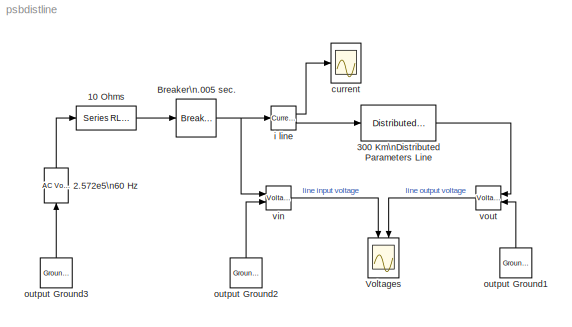
MODEL psbdistline
KIND model
BLOCK [Reference] 10 Ohms  REF=powerlib2/Elements/Series RLC Branch
  PSBOutputType = 1
  Ports = [1, 1]
  SourceBlock = powerlib2/Elements/Series RLC Branch
  SourceType = Series RLC Branch
  Tag = PoWeRsYsTeMbLoCk
  a = 10
  b = 0
  c = inf
  mesure = None
BLOCK [Reference] 2.572e5\n60 Hz   REF=powerlib2/Electrical\nSources/AC Voltage Source
  A = (315e3*sqrt(2))/sqrt(30)
  F = 60
  P = 0
  PSBOutputType = 1
  Ports = [1, 1]
  SourceBlock = powerlib2/Electrical\nSources/AC Voltage Source
  SourceType = AC Voltage Source
  Tag = PoWeRsYsTeMbLoCk
  mesure = None
  stime = 0
BLOCK [Reference] 300 Km\nDistributed Parameters Line  REF=powerlib2/Elements/Distributed Parameters Line
  PSBOutputType = 111111111111111111111111111111
  Ports = [1, 1]
  SourceBlock = powerlib2/Elements/Distributed Parameters Line
  SourceType = Distributed Parameters Line
  Tag = PoWeRsYsTeMbLoCk
  c = 8.6e-9
  f = 60
  l = 2.0e-3
  lgt = 300
  mesure = None
  n = 1
  r = 0.2568
  x1 = [0 -1.992e-09;0.0002737 -2.609e-09;0.0005474 -3.197e-09;0.0008212 -3.752e-09;0.001095 -4.267e-09;0.001369 -4.736e-09]
  x2 = [0 -1.992e-09;0.0002737 -2.609e-09;0.0005474 -3.197e-09;0.0008212 -3.752e-09;0.001095 -4.267e-09;0.001369 -4.736e-09]
  x3 = [0 -8.754e-13;0.0002737 -2.116e-12;0.0005474 -3.334e-12;0.0008212 -4.517e-12;0.001095 -5.651e-12;0.001369 -6.726e-12]
  x4 = [0 -8.754e-13;0.0002737 -2.116e-12;0.0005474 -3.334e-12;0.0008212 -4.517e-12;0.001095 -5.651e-12;0.001369 -6.726e-12]
  x5 = 0.001369
BLOCK [Reference] Breaker\n.005 sec.  REF=powerlib2/Elements/Breaker
  PSBOutputType = 1
  Ports = [1, 1]
  SourceBlock = powerlib2/Elements/Breaker
  SourceType = Breaker
  Tag = PoWeRsYsTeMbLoCk
  Ts = 0
  a = 1e-1
  c = 0
  comext = off
  cs = 0
  mesure = None
  rs = inf
  times = [ .005 ]
BLOCK [Scope] Voltages
  DataFormat = Array
  MaxDataPoints = 5000000
  NumInputPorts = 2
  Ports = [2]
  TickLabels = on
  TimeRange = 0.1
  YMax = 100000~200000
  YMin = -100000~-200000
BLOCK [Scope] current
  DataFormat = Array
  LimitDataPoints = off
  NumInputPorts = 1
  Ports = [1]
  TickLabels = on
  TimeRange = 0.05
  YMax = 100000
  YMin = -100000
BLOCK [Reference] i line  REF=powerlib2/Measurements/Current Measurement
  OutputType = Magnitude
  PSBOutputType = 01
  PSBequivalent = 0
  PhasorSimulation = off
  Ports = [1, 2]
  SourceBlock = powerlib2/Measurements/Current Measurement
  SourceType = Current Measurement
  Tag = PoWeRsYsTeMmEaSuReMeNt
BLOCK [Reference] output Ground1  REF=powerlib2/Connectors/Ground (output)
  PSBOutputType = 1
  Ports = [0, 1]
  SourceBlock = powerlib2/Connectors/Ground (output)
  SourceType = Ground
  Tag = PoWeRsYsTeMbLoCk
BLOCK [Reference] output Ground2  REF=powerlib2/Connectors/Ground (output)
  PSBOutputType = 1
  Ports = [0, 1]
  SourceBlock = powerlib2/Connectors/Ground (output)
  SourceType = Ground
  Tag = PoWeRsYsTeMbLoCk
BLOCK [Reference] output Ground3  REF=powerlib2/Connectors/Ground (output)
  PSBOutputType = 1
  Ports = [0, 1]
  SourceBlock = powerlib2/Connectors/Ground (output)
  SourceType = Ground
  Tag = PoWeRsYsTeMbLoCk
BLOCK [Reference] vin  REF=powerlib2/Measurements/Voltage Measurement
  OutputType = Magnitude
  PSBOutputType = 0
  PSBequivalent = 0
  PhasorSimulation = off
  Ports = [2, 1]
  SourceBlock = powerlib2/Measurements/Voltage Measurement
  SourceType = Voltage Measurement
  Tag = PoWeRsYsTeMmEaSuReMeNt
BLOCK [Reference] vout  REF=powerlib2/Measurements/Voltage Measurement
  OutputType = Magnitude
  PSBOutputType = 0
  PSBequivalent = 0
  PhasorSimulation = off
  Ports = [2, 1]
  SourceBlock = powerlib2/Measurements/Voltage Measurement
  SourceType = Voltage Measurement
  Tag = PoWeRsYsTeMmEaSuReMeNt
LINE 10 Ohms:1 -> Breaker\n.005 sec.:1
LINE 2.572e5\n60 Hz :1 -> 10 Ohms:1
LINE 300 Km\nDistributed Parameters Line:1 -> vout:1
NET Breaker\n.005 sec.:1 -> i line:1, vin:1
LINE i line:1 -> current:1
LINE i line:2 -> 300 Km\nDistributed Parameters Line:1
LINE output Ground1:1 -> vout:2
LINE output Ground2:1 -> vin:2
LINE output Ground3:1 -> 2.572e5\n60 Hz :1
LINE vin:1 -> Voltages:1
LINE vout:1 -> Voltages:2
note: NET lines group one-source signal fan-out (src -> all destinations, sorted); 1:1 wires keep LINE
